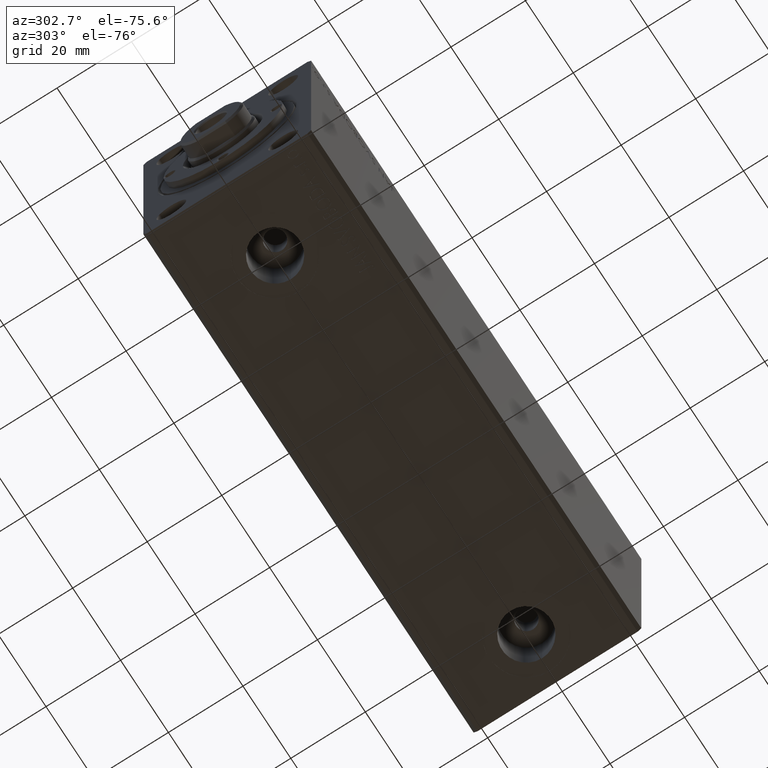
[diagram: clean part render]
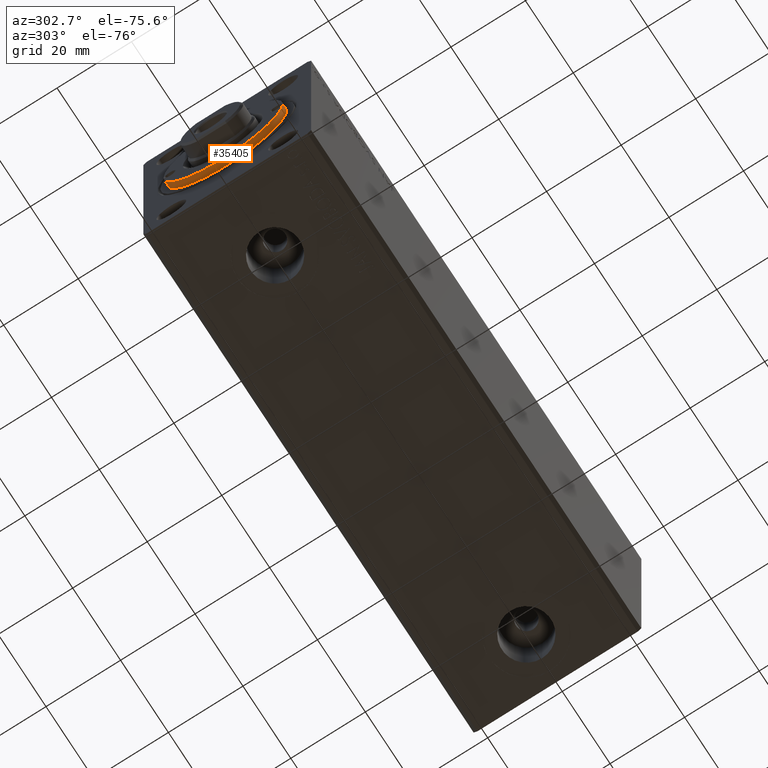
[diagram: same view with one face highlighted and labeled with its STEP entity id]
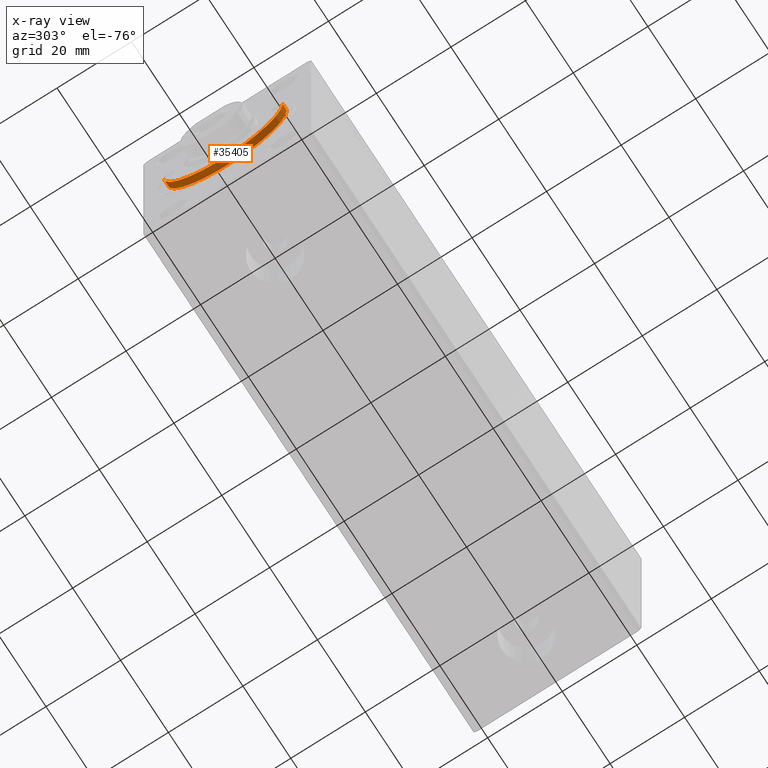
[diagram: x-ray of the same camera — body ghosted, the highlighted face saturated]
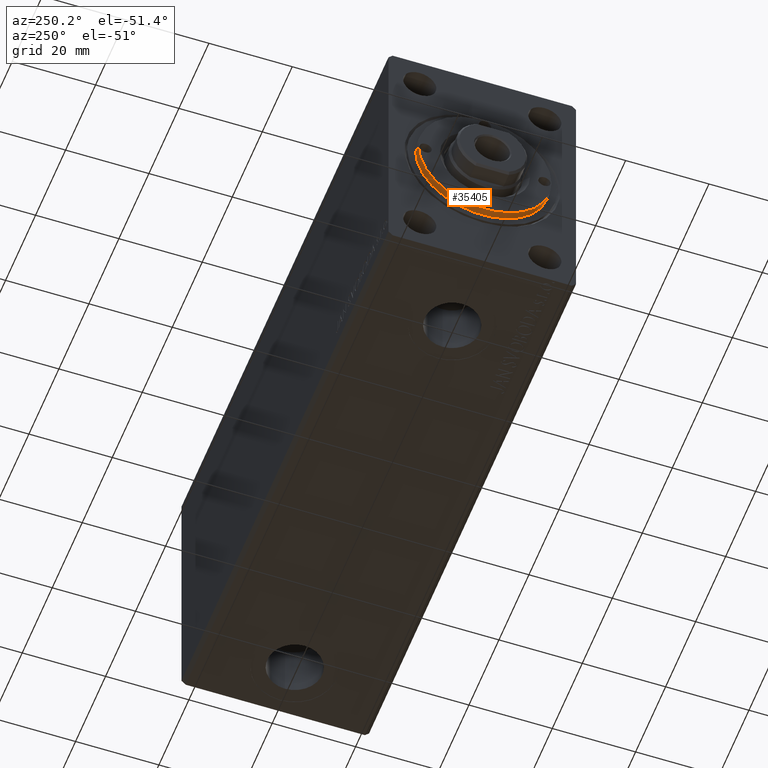
[diagram: same view with one face highlighted and labeled with its STEP entity id]
A machine part, auxiliary view. The second image highlights one B-rep face of the part: STEP entity #35405.
The next image is the same camera in x-ray: the body ghosted, the highlighted face saturated — about 0% of this face is hidden behind the body in this view.
A second angle (auxiliary view) of the same face is appended — the face is thin or edge-on in the first view.
In plain terms, the highlighted cylindrical surface (partial cylindrical patch) has radius 16 mm, axis along (1, -0, 0).
Its self-contained STEP definition (entity closure, byte-faithful):
#1042 = LINE ( 'NONE', #14629, #3271 ) ;
#1536 = VERTEX_POINT ( 'NONE', #17325 ) ;
#2316 = CYLINDRICAL_SURFACE ( 'NONE', #5760, 16.00000000000000000 ) ;
#2739 = DIRECTION ( 'NONE',  ( -0.000000000000000000, -0.000000000000000000, -1.000000000000000000 ) ) ;
#3271 = VECTOR ( 'NONE', #5654, 1000.000000000000000 ) ;
#5299 = CARTESIAN_POINT ( 'NONE',  ( 16.00000000000000000, 1.959434878635765131E-15, 5.200000000000000178 ) ) ;
#5559 = DIRECTION ( 'NONE',  ( 1.000000000000000000, 0.000000000000000000, 0.000000000000000000 ) ) ;
#5654 = DIRECTION ( 'NONE',  ( -0.000000000000000000, -0.000000000000000000, -1.000000000000000000 ) ) ;
#5760 = AXIS2_PLACEMENT_3D ( 'NONE', #22825, #2739, #36015 ) ;
#8736 = DIRECTION ( 'NONE',  ( 1.000000000000000000, 0.000000000000000000, 0.000000000000000000 ) ) ;
#9228 = EDGE_CURVE ( 'NONE', #23010, #1536, #9690, .T. ) ;
#9690 = CIRCLE ( 'NONE', #34619, 16.00000000000000000 ) ;
#9905 = EDGE_CURVE ( 'NONE', #25780, #1536, #1042, .T. ) ;
#10334 = ORIENTED_EDGE ( 'NONE', *, *, #9228, .T. ) ;
#11380 = ORIENTED_EDGE ( 'NONE', *, *, #37525, .T. ) ;
#13055 = CARTESIAN_POINT ( 'NONE',  ( -16.00000000000000000, 0.000000000000000000, 6.999999999999999112 ) ) ;
#14285 = EDGE_LOOP ( 'NONE', ( #42703, #11380, #10334, #41117 ) ) ;
#14629 = CARTESIAN_POINT ( 'NONE',  ( -16.00000000000000000, 0.000000000000000000, 6.999999999999999112 ) ) ;
#16810 = CARTESIAN_POINT ( 'NONE',  ( 16.00000000000000000, 1.959434878635765131E-15, 6.999999999999999112 ) ) ;
#17325 = CARTESIAN_POINT ( 'NONE',  ( -16.00000000000000000, 0.000000000000000000, 5.200000000000000178 ) ) ;
#19207 = DIRECTION ( 'NONE',  ( 0.000000000000000000, 0.000000000000000000, 1.000000000000000000 ) ) ;
#22607 = FACE_OUTER_BOUND ( 'NONE', #14285, .T. ) ;
#22825 = CARTESIAN_POINT ( 'NONE',  ( 0.000000000000000000, 0.000000000000000000, 6.999999999999999112 ) ) ;
#23010 = VERTEX_POINT ( 'NONE', #5299 ) ;
#25342 = CARTESIAN_POINT ( 'NONE',  ( 16.00000000000000000, 1.959434878635765131E-15, 6.999999999999999112 ) ) ;
#25780 = VERTEX_POINT ( 'NONE', #13055 ) ;
#29203 = CARTESIAN_POINT ( 'NONE',  ( 0.000000000000000000, 0.000000000000000000, 6.999999999999999112 ) ) ;
#30046 = VECTOR ( 'NONE', #30431, 1000.000000000000000 ) ;
#30431 = DIRECTION ( 'NONE',  ( -0.000000000000000000, -0.000000000000000000, -1.000000000000000000 ) ) ;
#31530 = VERTEX_POINT ( 'NONE', #25342 ) ;
#32337 = DIRECTION ( 'NONE',  ( 0.000000000000000000, 0.000000000000000000, 1.000000000000000000 ) ) ;
#34344 = CIRCLE ( 'NONE', #36506, 16.00000000000000000 ) ;
#34619 = AXIS2_PLACEMENT_3D ( 'NONE', #39314, #19207, #8736 ) ;
#35405 = ADVANCED_FACE ( 'NONE', ( #22607 ), #2316, .T. ) ;
#36015 = DIRECTION ( 'NONE',  ( -1.000000000000000000, 0.000000000000000000, 0.000000000000000000 ) ) ;
#36506 = AXIS2_PLACEMENT_3D ( 'NONE', #29203, #32337, #5559 ) ;
#37525 = EDGE_CURVE ( 'NONE', #31530, #23010, #43833, .T. ) ;
#39314 = CARTESIAN_POINT ( 'NONE',  ( 0.000000000000000000, 0.000000000000000000, 5.200000000000000178 ) ) ;
#41117 = ORIENTED_EDGE ( 'NONE', *, *, #9905, .F. ) ;
#42520 = EDGE_CURVE ( 'NONE', #31530, #25780, #34344, .T. ) ;
#42703 = ORIENTED_EDGE ( 'NONE', *, *, #42520, .F. ) ;
#43833 = LINE ( 'NONE', #16810, #30046 ) ;